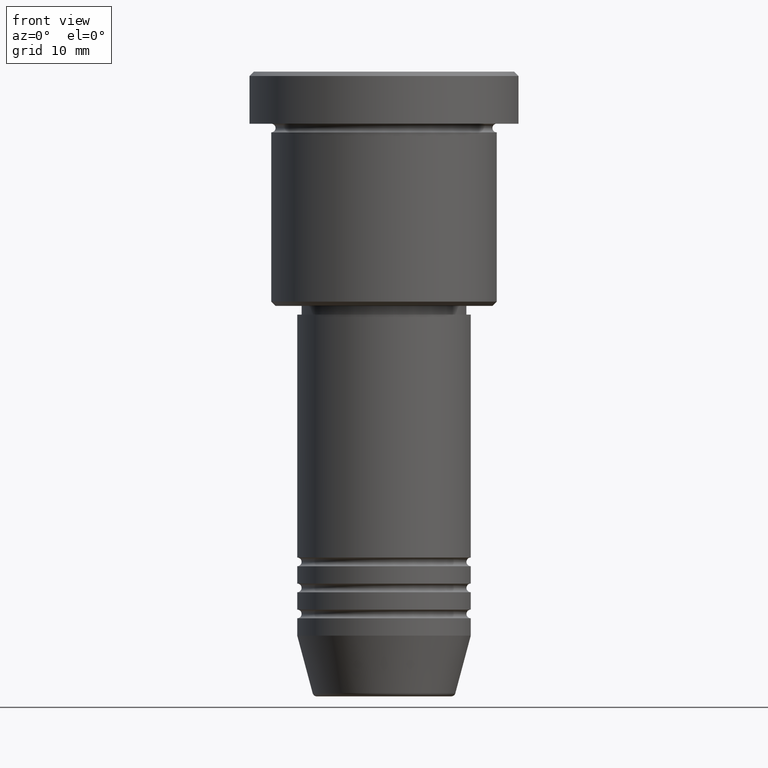
[diagram: clean part render]
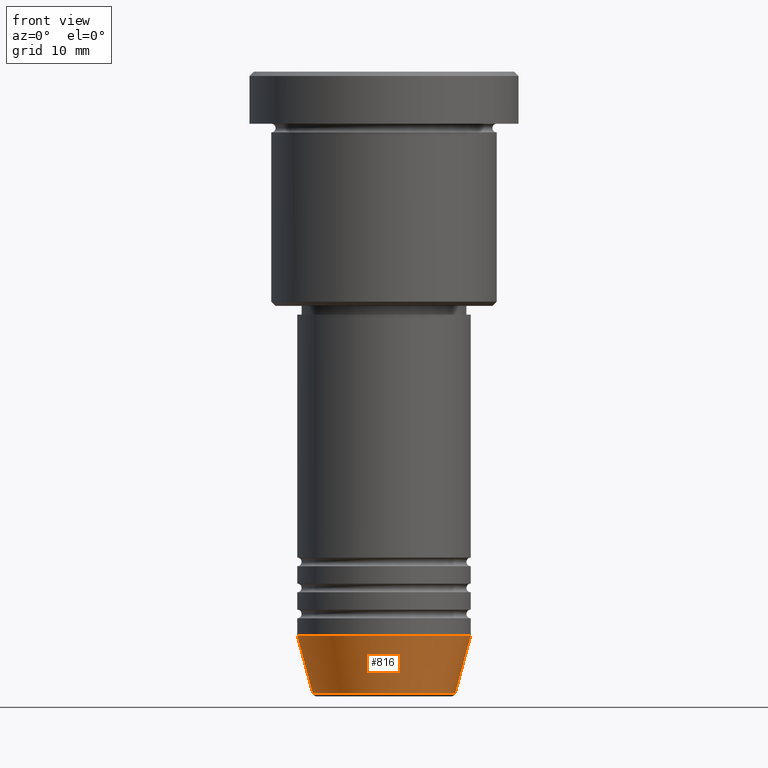
[diagram: same view with one face highlighted and labeled with its STEP entity id]
A machine part, front view. The second image highlights one B-rep face of the part: STEP entity #816.
In plain terms, the highlighted conical surface has half-angle 15 deg.
Its self-contained STEP definition (entity closure, byte-faithful):
#58 = ORIENTED_EDGE ( 'NONE', *, *, #629, .T. ) ;
#60 = CARTESIAN_POINT ( 'NONE',  ( 0.000000000000000000, 0.000000000000000000, -65.00000000000000000 ) ) ;
#65 = VERTEX_POINT ( 'NONE', #1030 ) ;
#68 = CARTESIAN_POINT ( 'NONE',  ( -10.00000000000000000, 1.224646799147353256E-15, -65.00000000000000000 ) ) ;
#116 = DIRECTION ( 'NONE',  ( 0.2588190451025213501, 0.000000000000000000, 0.9659258262890680902 ) ) ;
#222 = AXIS2_PLACEMENT_3D ( 'NONE', #60, #235, #601 ) ;
#235 = DIRECTION ( 'NONE',  ( -0.000000000000000000, -0.000000000000000000, 1.000000000000000000 ) ) ;
#292 = CARTESIAN_POINT ( 'NONE',  ( -8.223655072137187716, 1.115877042642911856E-15, -71.62940952255127058 ) ) ;
#293 = EDGE_CURVE ( 'NONE', #497, #65, #688, .T. ) ;
#332 = DIRECTION ( 'NONE',  ( -0.2588190451025213501, 3.169619151431772337E-17, 0.9659258262890680902 ) ) ;
#336 = VECTOR ( 'NONE', #332, 1000.000000000000000 ) ;
#344 = ORIENTED_EDGE ( 'NONE', *, *, #293, .F. ) ;
#413 = AXIS2_PLACEMENT_3D ( 'NONE', #1061, #790, #537 ) ;
#444 = DIRECTION ( 'NONE',  ( -0.000000000000000000, -0.000000000000000000, 1.000000000000000000 ) ) ;
#455 = CONICAL_SURFACE ( 'NONE', #961, 10.00000000000000000, 0.2617993877991500740 ) ;
#497 = VERTEX_POINT ( 'NONE', #993 ) ;
#502 = CARTESIAN_POINT ( 'NONE',  ( 10.00000000000000000, 0.000000000000000000, -65.00000000000000000 ) ) ;
#530 = EDGE_LOOP ( 'NONE', ( #1058, #810, #58, #344 ) ) ;
#537 = DIRECTION ( 'NONE',  ( 1.000000000000000000, 0.000000000000000000, 0.000000000000000000 ) ) ;
#557 = EDGE_CURVE ( 'NONE', #1092, #883, #861, .T. ) ;
#601 = DIRECTION ( 'NONE',  ( 1.000000000000000000, 0.000000000000000000, 0.000000000000000000 ) ) ;
#629 = EDGE_CURVE ( 'NONE', #883, #65, #1065, .T. ) ;
#637 = VECTOR ( 'NONE', #116, 1000.000000000000000 ) ;
#688 = CIRCLE ( 'NONE', #222, 10.00000000000000000 ) ;
#752 = EDGE_CURVE ( 'NONE', #1092, #497, #1178, .T. ) ;
#790 = DIRECTION ( 'NONE',  ( -0.000000000000000000, -0.000000000000000000, 1.000000000000000000 ) ) ;
#810 = ORIENTED_EDGE ( 'NONE', *, *, #557, .T. ) ;
#812 = FACE_OUTER_BOUND ( 'NONE', #530, .T. ) ;
#816 = ADVANCED_FACE ( 'NONE', ( #812 ), #455, .T. ) ;
#830 = DIRECTION ( 'NONE',  ( 1.000000000000000000, 0.000000000000000000, 0.000000000000000000 ) ) ;
#861 = CIRCLE ( 'NONE', #413, 8.223655072137187716 ) ;
#883 = VERTEX_POINT ( 'NONE', #1119 ) ;
#961 = AXIS2_PLACEMENT_3D ( 'NONE', #1108, #444, #830 ) ;
#993 = CARTESIAN_POINT ( 'NONE',  ( -10.00000000000000000, 1.224646799147353256E-15, -65.00000000000000000 ) ) ;
#1030 = CARTESIAN_POINT ( 'NONE',  ( 10.00000000000000000, 0.000000000000000000, -65.00000000000000000 ) ) ;
#1058 = ORIENTED_EDGE ( 'NONE', *, *, #752, .F. ) ;
#1061 = CARTESIAN_POINT ( 'NONE',  ( 0.000000000000000000, 0.000000000000000000, -71.62940952255127058 ) ) ;
#1065 = LINE ( 'NONE', #502, #637 ) ;
#1092 = VERTEX_POINT ( 'NONE', #292 ) ;
#1108 = CARTESIAN_POINT ( 'NONE',  ( 0.000000000000000000, 0.000000000000000000, -65.00000000000000000 ) ) ;
#1119 = CARTESIAN_POINT ( 'NONE',  ( 8.223655072137187716, 0.000000000000000000, -71.62940952255127058 ) ) ;
#1178 = LINE ( 'NONE', #68, #336 ) ;